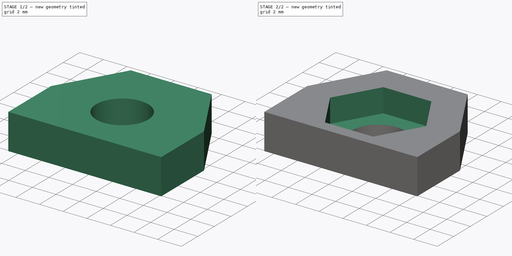
[diagram: build sequence overview — one tinted view per stage of 2, left to right]
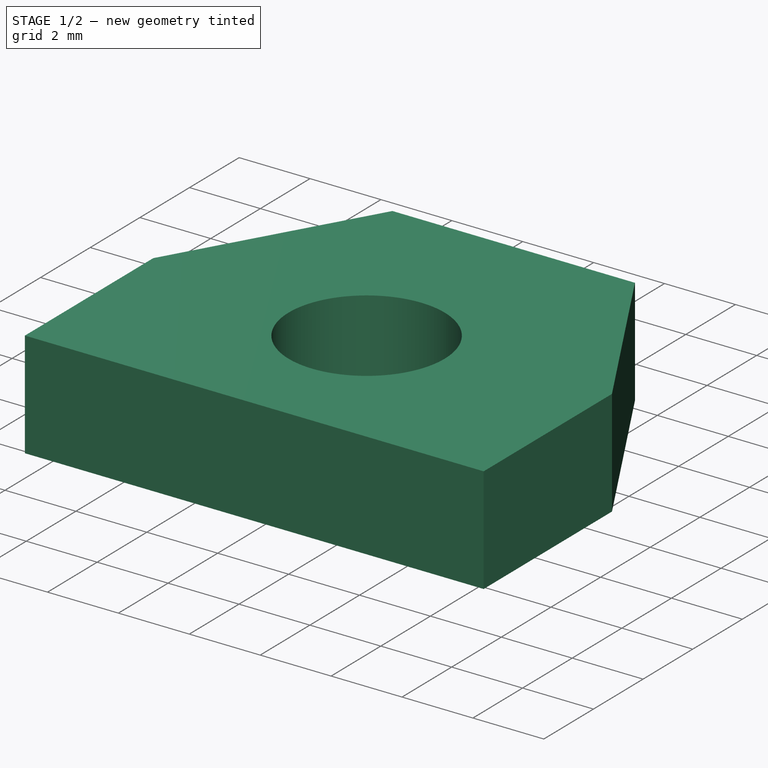
[diagram: stage 1 of 2 — iso view after this stage's code; geometry added in this stage tinted green]
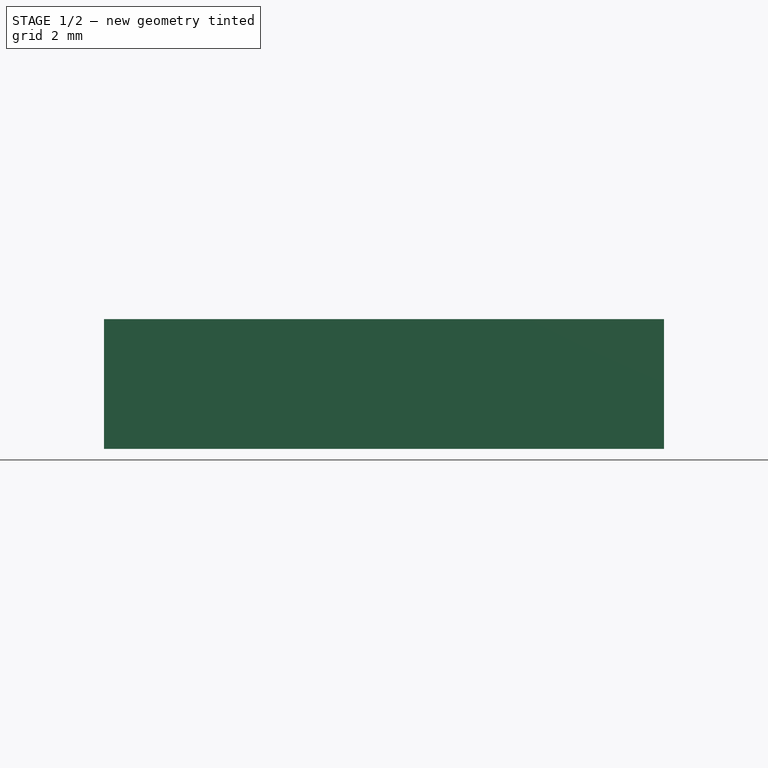
[diagram: stage 1 of 2 — front view after this stage's code; geometry added in this stage tinted green]
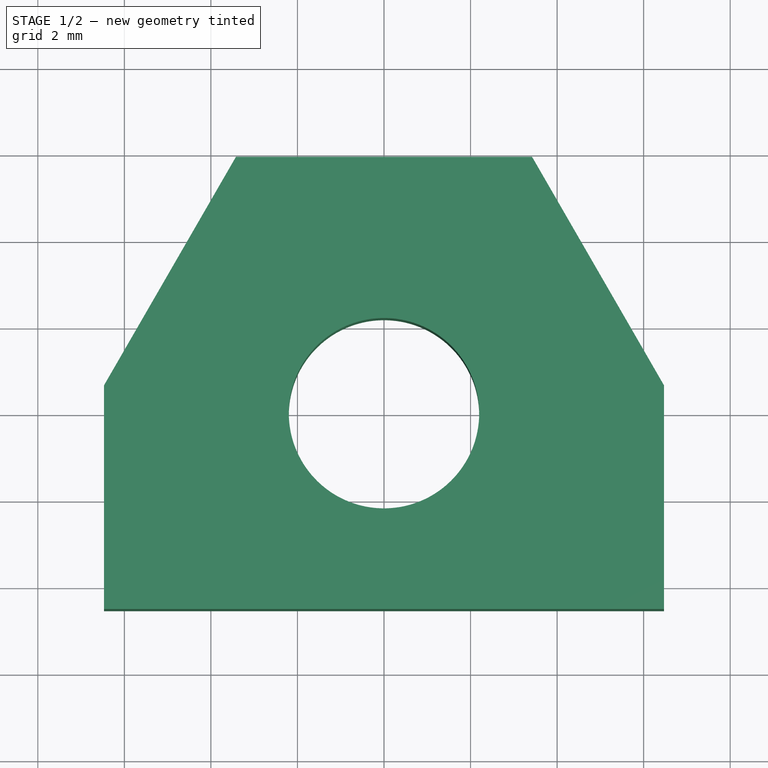
[diagram: stage 1 of 2 — top view after this stage's code; geometry added in this stage tinted green]
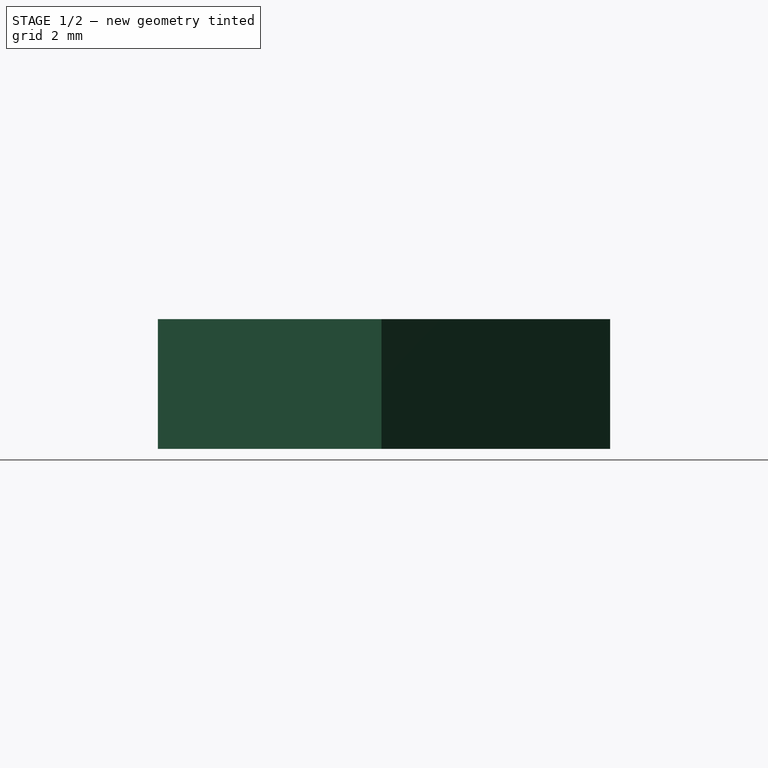
[diagram: stage 1 of 2 — right view after this stage's code; geometry added in this stage tinted green]
FCSTD DOCUMENT  (FreeCAD 0.15R4671 (Git))
Label: Halterung Schrittmotor v4 - Verschraubung
License: All rights reserved
LicenseURL: http://en.wikipedia.org/wiki/All_rights_reserved
objects: Sketcher::SketchObject×2, PartDesign::Pad×1, PartDesign::Pocket×1
note: 6 computed .brp shape members not serialized (recipe doc carries the construction recipe); baked Part::Feature solids carry a one-line shape summary decoded from their .brp

FEATURE [Sketcher::SketchObject] Sketch
  sketch-geometry (15):
    g0: LineSegment StartX=6.47032 StartY=-4.525 StartZ=0 EndX=-6.47032 EndY=-4.525 EndZ=0
    g1: LineSegment StartX=-6.47032 StartY=-4.525 StartZ=0 EndX=-6.47032 EndY=0.643078 EndZ=0
    g2: LineSegment StartX=-6.47032 StartY=0.643078 StartZ=0 EndX=-3.4208 EndY=5.925 EndZ=0
    g3: LineSegment StartX=-3.4208 StartY=5.925 StartZ=0 EndX=3.4208 EndY=5.925 EndZ=0
    g4: LineSegment StartX=3.4208 StartY=5.925 StartZ=0 EndX=6.47032 EndY=0.643078 EndZ=0
    g5: LineSegment StartX=6.47032 StartY=0.643078 StartZ=0 EndX=6.47032 EndY=-4.525 EndZ=0
    g6: LineSegment [constr] StartX=4.07032 StartY=0 StartZ=0 EndX=2.03516 EndY=3.525 EndZ=0
    g7: LineSegment [constr] StartX=2.03516 StartY=3.525 StartZ=0 EndX=-2.03516 EndY=3.525 EndZ=0
    g8: LineSegment [constr] StartX=-2.03516 StartY=3.525 StartZ=0 EndX=-4.07032 EndY=0 EndZ=0
    g9: LineSegment [constr] StartX=-4.07032 StartY=0 StartZ=0 EndX=-2.03516 EndY=-3.525 EndZ=0
    g10: LineSegment [constr] StartX=-2.03516 StartY=-3.525 StartZ=0 EndX=2.03516 EndY=-3.525 EndZ=0
    g11: LineSegment [constr] StartX=2.03516 StartY=-3.525 StartZ=0 EndX=4.07032 EndY=0 EndZ=0
    g12: Circle [constr] CenterX=0 CenterY=0 CenterZ=0 NormalX=0 NormalY=0 NormalZ=1 Radius=4.07032
    g13: LineSegment [constr] StartX=4.07032 StartY=0 StartZ=0 EndX=6.14878 EndY=1.2 EndZ=0
    g14: Circle CenterX=0 CenterY=0 CenterZ=0 NormalX=0 NormalY=0 NormalZ=1 Radius=2.2
  constraints (38):
    c: Coincident(g0,g1)
    c: Vertical(g1)
    c: Coincident(g1,g2)
    c: Coincident(g2,g3)
    c: Coincident(g3,g4)
    c: Coincident(g4,g5)
    c: Coincident(g5,g0)
    c: Vertical(g5)
    c: Symmetric(g0,g0,g-2)
    c: Symmetric(g2,g3,g-2)
    c: Equal(g5,g1)
    c: Equal(g2,g4)
    c: Coincident(g6,g7)
    c: Coincident(g7,g8)
    c: Coincident(g8,g9)
    c: Coincident(g9,g10)
    c: Coincident(g10,g11)
    c: Coincident(g11,g6)
    c: Equal(g6, g7-g11) x5
    c: PointOnObject(g6,g12)
    c: PointOnObject(g7,g12)
    c: PointOnObject(g8,g12)
    c: PointOnObject(g9,g12)
    c: PointOnObject(g10,g12)
    c: PointOnObject(g11,g12)
    c: Horizontal(g10)
    c: Coincident(g12,g-1)
    c: Distance(g10,g6) = 7.05
    c: DistanceX(g8,g1) = -2.4
    c: DistanceY(g10,g0) = -1
    c: DistanceY(g6,g3) = 2.4
    c: Parallel(g6,g4)
    c: Coincident(g13,g6)
    c: PointOnObject(g13,g4)
    c: Perpendicular(g4,g13)
    c: Distance(g13) = 2.4
    c: Coincident(g14,g-1)
    c: Radius(g14) = 2.2
FEATURE [PartDesign::Pad] Pad
  Length = 3
  Length2 = 100
  Sketch = -> Sketch
  Type = 0
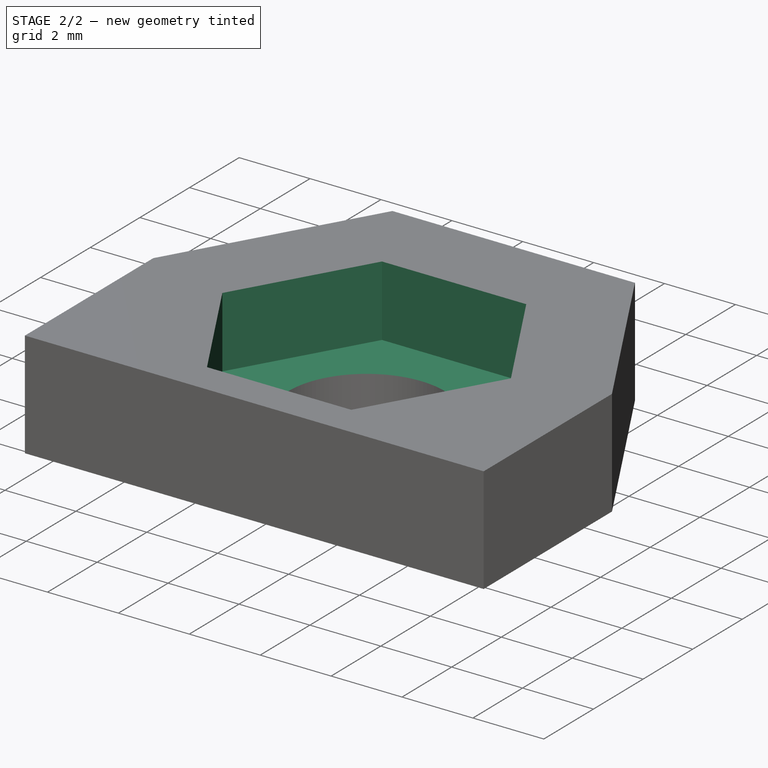
[diagram: stage 2 of 2 — iso view after this stage's code; geometry added in this stage tinted green]
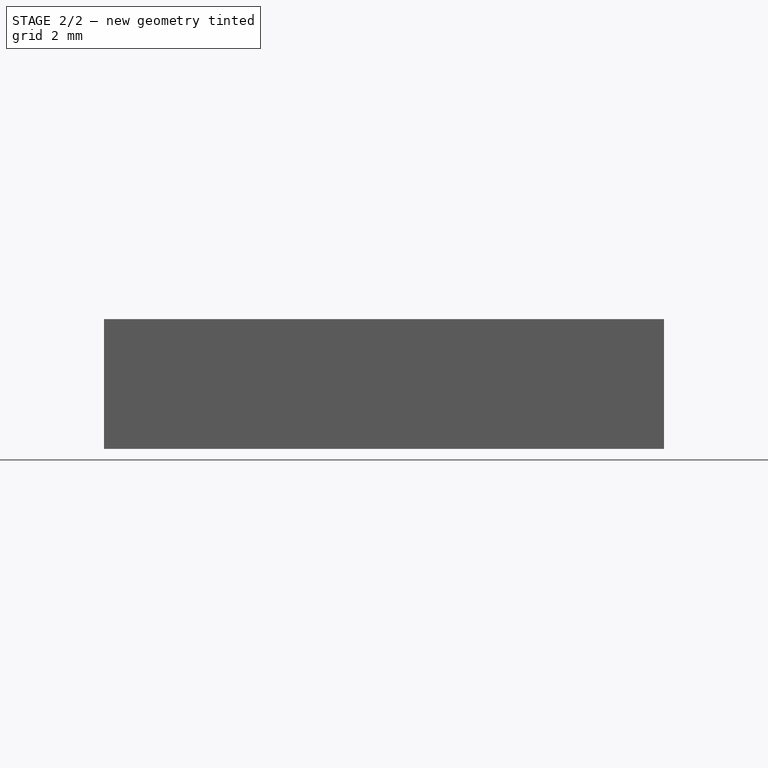
[diagram: stage 2 of 2 — front view after this stage's code; geometry added in this stage tinted green]
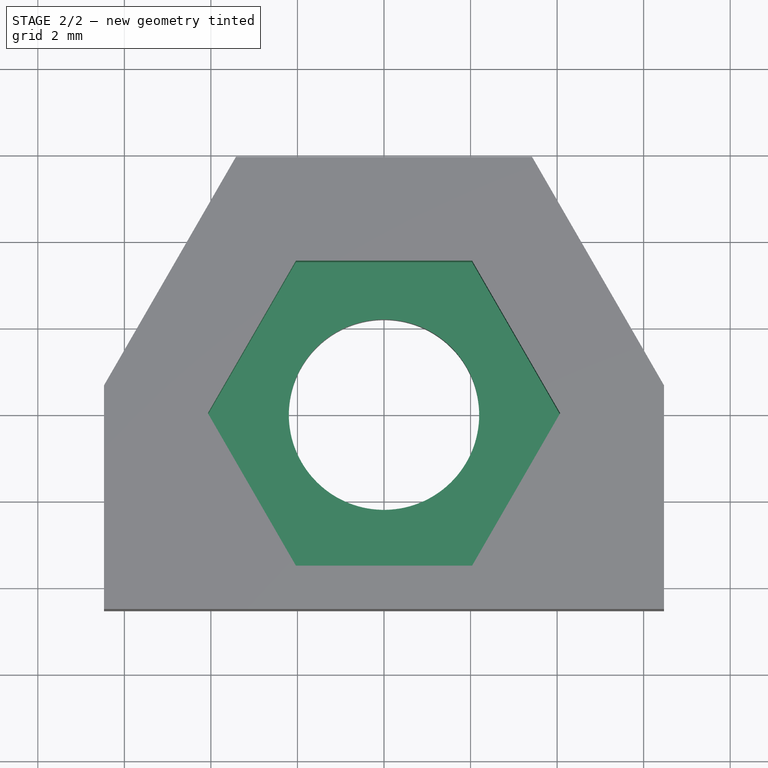
[diagram: stage 2 of 2 — top view after this stage's code; geometry added in this stage tinted green]
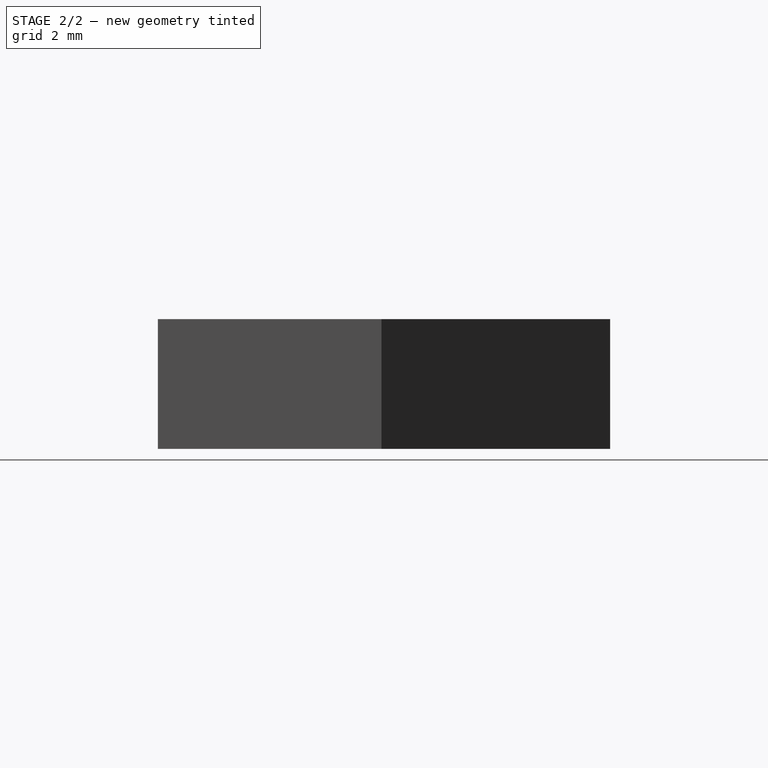
[diagram: stage 2 of 2 — right view after this stage's code; geometry added in this stage tinted green]
FEATURE [Sketcher::SketchObject] Sketch001
  Placement = pos=(0,0,3) rot=(0,0,1;0rad)
  Support = -> Pad [Face9]
  sketch-geometry (7):
    g0: LineSegment StartX=4.07032 StartY=0 StartZ=0 EndX=2.03516 EndY=3.525 EndZ=0
    g1: LineSegment StartX=2.03516 StartY=3.525 StartZ=0 EndX=-2.03516 EndY=3.525 EndZ=0
    g2: LineSegment StartX=-2.03516 StartY=3.525 StartZ=0 EndX=-4.07032 EndY=0 EndZ=0
    g3: LineSegment StartX=-4.07032 StartY=0 StartZ=0 EndX=-2.03516 EndY=-3.525 EndZ=0
    g4: LineSegment StartX=-2.03516 StartY=-3.525 StartZ=0 EndX=2.03516 EndY=-3.525 EndZ=0
    g5: LineSegment StartX=2.03516 StartY=-3.525 StartZ=0 EndX=4.07032 EndY=0 EndZ=0
    g6: Circle [constr] CenterX=0 CenterY=0 CenterZ=0 NormalX=0 NormalY=0 NormalZ=1 Radius=4.07032
  constraints (16):
    c: Coincident(g0,g1)
    c: Coincident(g1,g2)
    c: Coincident(g2,g3)
    c: Coincident(g3,g4)
    c: Coincident(g4,g5)
    c: Coincident(g5,g0)
    c: Equal(g0, g1-g5) x5
    c: PointOnObject(g0,g6)
    c: PointOnObject(g1,g6)
    c: PointOnObject(g2,g6)
    c: PointOnObject(g3,g6)
    c: PointOnObject(g4,g6)
    c: PointOnObject(g5,g6)
    c: Horizontal(g4)
    c: Distance(g4,g0) = 7.05
    c: Coincident(g6,g-1)
FEATURE [PartDesign::Pocket] Pocket
  Length = 2
  Sketch = -> Sketch001
  Type = 0
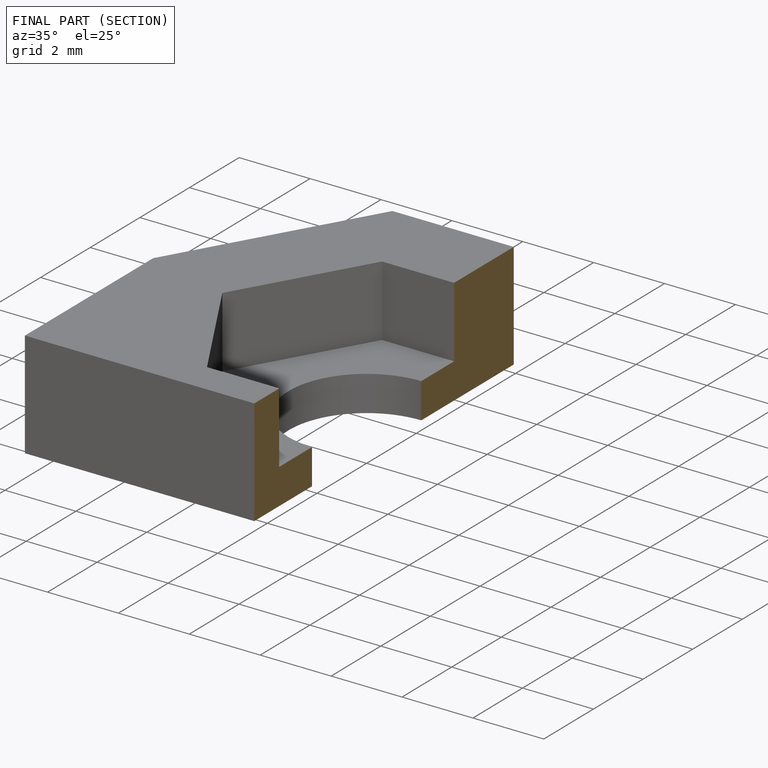
[diagram: finished part — half-section view (interior)]
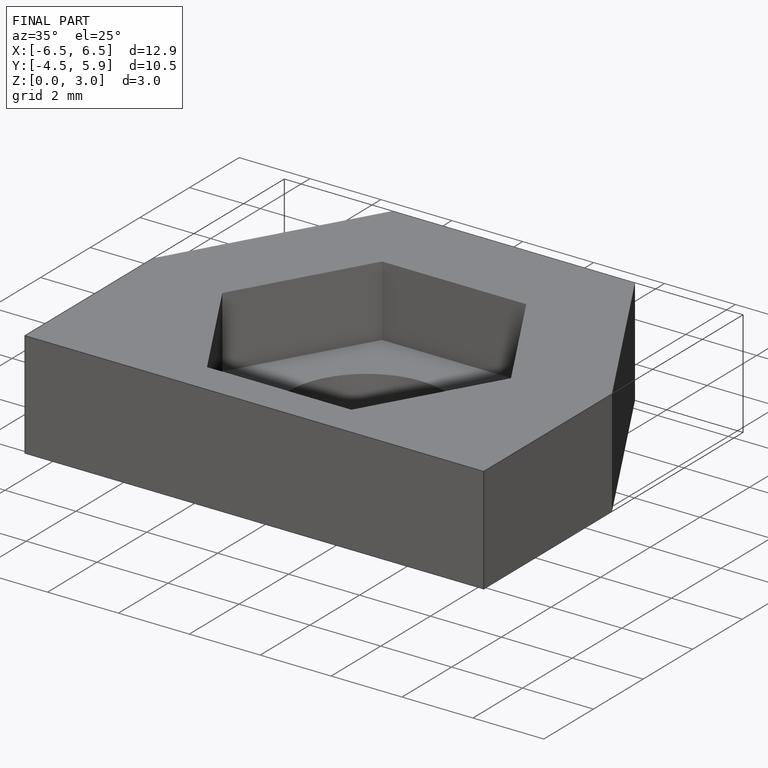
[diagram: finished part — iso view with bounding-box wireframe]
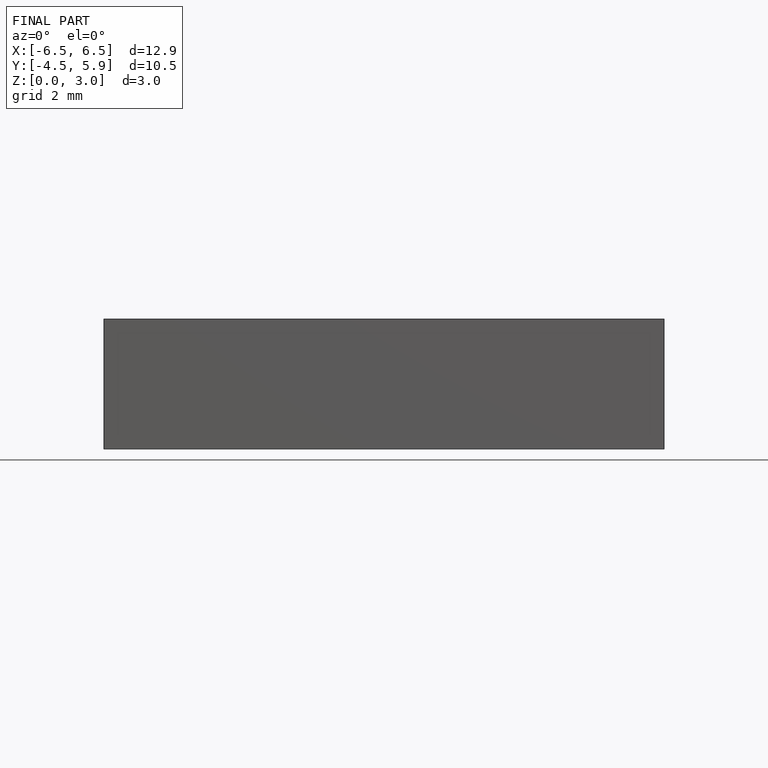
[diagram: finished part — front view with bounding-box wireframe]
